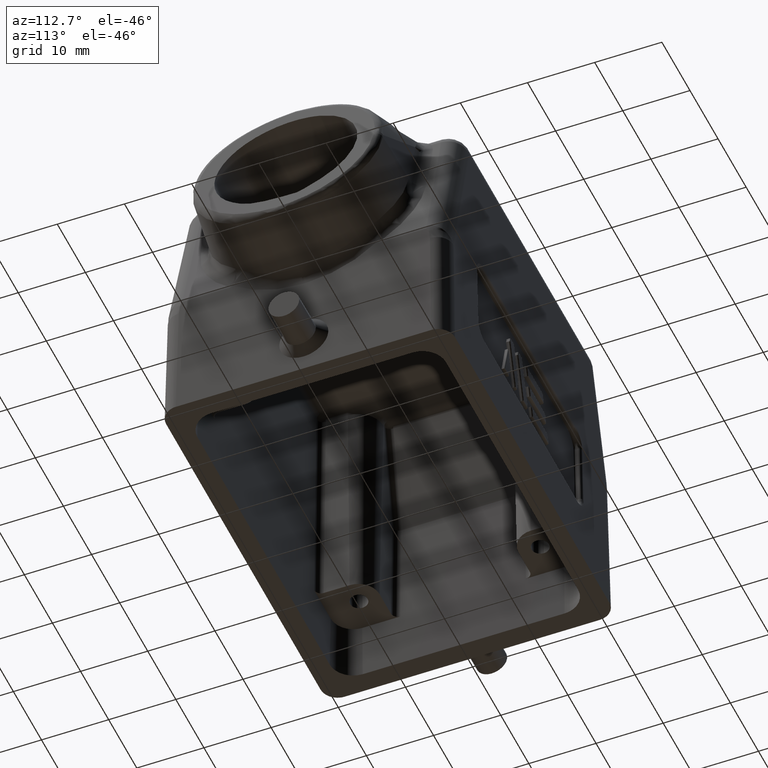
[diagram: clean part render]
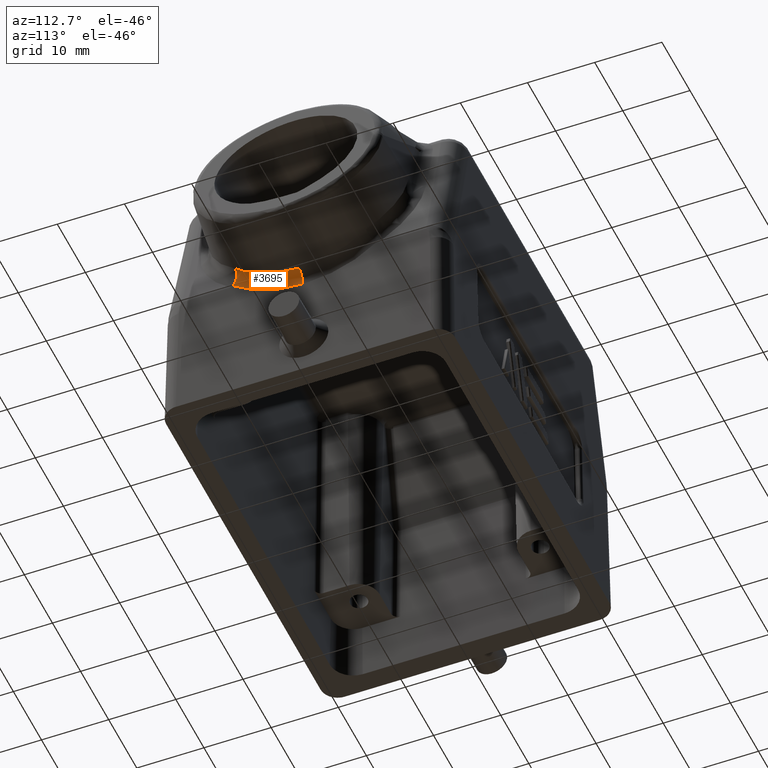
[diagram: same view with one face highlighted and labeled with its STEP entity id]
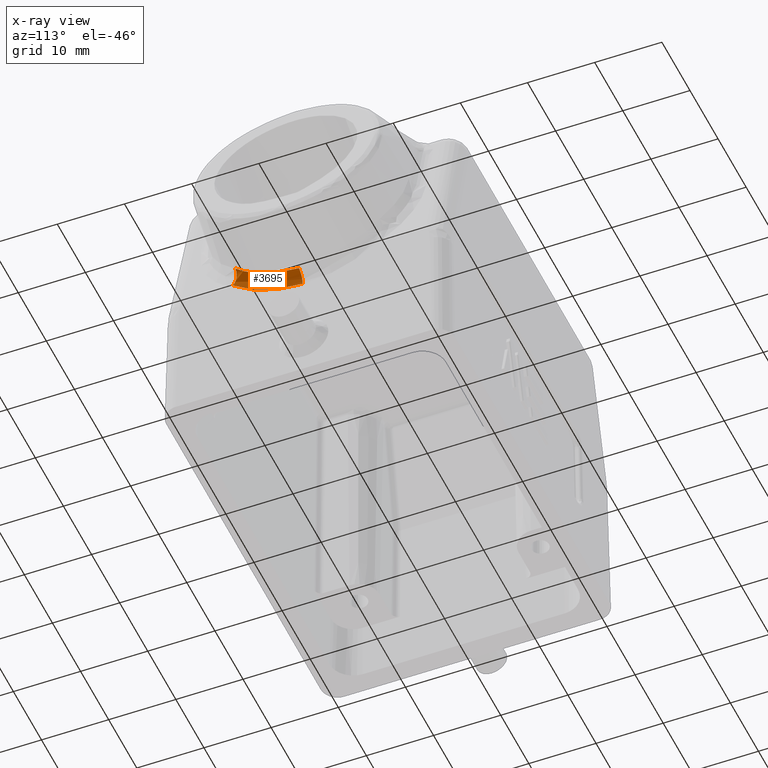
[diagram: x-ray of the same camera — body ghosted, the highlighted face saturated]
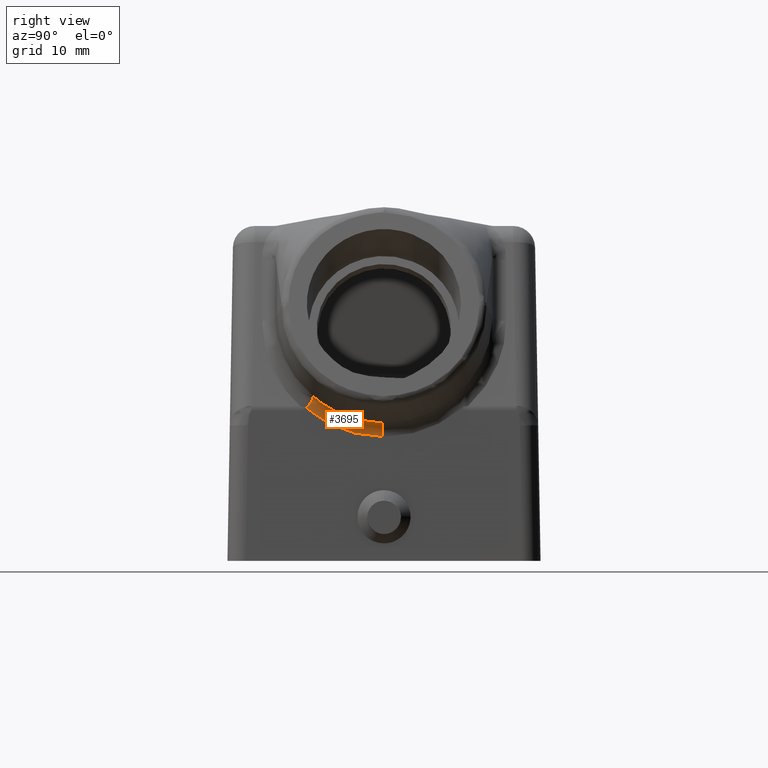
[diagram: same view with one face highlighted and labeled with its STEP entity id]
A machine part, auxiliary view. The second image highlights one B-rep face of the part: STEP entity #3695.
The next image is the same camera in x-ray: the body ghosted, the highlighted face saturated — about 0% of this face is hidden behind the body in this view.
A second angle (right view) of the same face is appended — the face is thin or edge-on in the first view.
In plain terms, the highlighted face is a freeform B-spline surface patch.
Its self-contained STEP definition (entity closure, byte-faithful):
#78 = B_SPLINE_CURVE_WITH_KNOTS ( 'NONE', 3,
 ( #10355, #5268, #9359, #10683, #3522, #3715, #1778, #4663, #7824, #713, #6880, #10890, #9686, #8890, #9885, #10756, #2647, #520, #6686, #3781, #4596, #8695, #6752, #12771, #10825, #12703, #5672, #2519, #1718, #650, #11696, #8758 ),
 .UNSPECIFIED., .F., .F.,
 ( 4, 2, 2, 2, 1, 1, 1, 2, 2, 2, 2, 1, 2, 2, 2, 2, 2, 4 ),
 ( 0.000000000000000000, 0.1250000000000180411, 0.1875000000000278944, 0.2187500000000328348, 0.2343750000000356659, 0.2421875000000341949, 0.2460937500000281442, 0.2480468750000245637, 0.2500000000000209832, 0.3750000000000205391, 0.4375000000000202616, 0.4687500000000183742, 0.4843750000000169864, 0.5000000000000156541, 0.6250000000000139888, 0.6875000000000137668, 0.7500000000000134337, 1.000000000000000000 ),
 .UNSPECIFIED. ) ;
#106 = CARTESIAN_POINT ( 'NONE',  ( 2.410532031252316632, -0.2138507835756210951, 0.7853323967886894907 ) ) ;
#171 = CARTESIAN_POINT ( 'NONE',  ( 2.410525151321834425, -0.2021237060722013978, 0.7808167396402795335 ) ) ;
#185 = ORIENTED_EDGE ( 'NONE', *, *, #8290, .T. ) ;
#231 = CARTESIAN_POINT ( 'NONE',  ( 2.410529119996060565, -0.2090603107907433866, 0.7834692307133687139 ) ) ;
#478 = EDGE_CURVE ( 'NONE', #9720, #4615, #9237, .T. ) ;
#520 = CARTESIAN_POINT ( 'NONE',  ( 2.376005099166590195, -0.3895338843244742222, 0.8688799170413529227 ) ) ;
#650 = CARTESIAN_POINT ( 'NONE',  ( 2.356932806845712935, -0.4093821122469066820, 0.8392228075652745645 ) ) ;
#713 = CARTESIAN_POINT ( 'NONE',  ( 2.389164890124333862, -0.3846900406557042795, 0.8793216709848833412 ) ) ;
#1092 = CARTESIAN_POINT ( 'NONE',  ( 2.410528091709839948, -0.2073428907150584866, 0.7828041075075907740 ) ) ;
#1211 = CARTESIAN_POINT ( 'NONE',  ( 2.356465577731760241, -0.3612823037488399058, 0.7798975530428238212 ) ) ;
#1227 = CARTESIAN_POINT ( 'NONE',  ( 2.410707623619142037, -0.2998722456583452489, 0.8285979095645560344 ) ) ;
#1475 = CARTESIAN_POINT ( 'NONE',  ( 2.354711236637602401, -0.3936332682823150408, 0.8804036870140670157 ) ) ;
#1518 = VERTEX_POINT ( 'NONE', #11343 ) ;
#1712 = EDGE_CURVE ( 'NONE', #1518, #10412, #6983, .T. ) ;
#1718 = CARTESIAN_POINT ( 'NONE',  ( 2.360085719032794405, -0.4036908986678343081, 0.8468787886654920438 ) ) ;
#1778 = CARTESIAN_POINT ( 'NONE',  ( 2.390505308112823357, -0.3843703968229731927, 0.8801975502710797095 ) ) ;
#2227 = CARTESIAN_POINT ( 'NONE',  ( 2.410704137277871695, -0.2986595656671036658, 0.8278543253098012977 ) ) ;
#2265 = CARTESIAN_POINT ( 'NONE',  ( 2.355657416305152463, -0.4202473945183403670, 0.8261970901643700405 ) ) ;
#2397 = AXIS2_PLACEMENT_3D ( 'NONE', #11165, #6278, #6085 ) ;
#2410 = CARTESIAN_POINT ( 'NONE',  ( 2.410414522102803048, -0.1468917376016382059, 0.7456705291821024151 ) ) ;
#2412 = CARTESIAN_POINT ( 'NONE',  ( 2.358181988846760557, -0.1118724155464591724, 0.6815644261218235522 ) ) ;
#2476 = CARTESIAN_POINT ( 'NONE',  ( 2.355465435627925430, -0.4327274467885197096, 0.8371956557966419021 ) ) ;
#2519 = CARTESIAN_POINT ( 'NONE',  ( 2.360828472556849800, -0.4025264964045489058, 0.8484803811200191115 ) ) ;
#2617 = CARTESIAN_POINT ( 'NONE',  ( 2.411013136860780559, -0.3822381215753754002, 0.8902979113073493656 ) ) ;
#2647 = CARTESIAN_POINT ( 'NONE',  ( 2.377407244871250214, -0.3888365076415081778, 0.8701977207799467262 ) ) ;
#2669 = CARTESIAN_POINT ( 'NONE',  ( 2.357355028804606345, -0.009352879380469487219, 0.7289409352066495984 ) ) ;
#3025 = EDGE_CURVE ( 'NONE', #9720, #1518, #11162, .T. ) ;
#3156 = CARTESIAN_POINT ( 'NONE',  ( 2.410516075118277701, -0.1810869043681776203, 0.7733156389411037779 ) ) ;
#3217 = CARTESIAN_POINT ( 'NONE',  ( 2.410679007601093105, -0.2896432267738574540, 0.8224355826670113334 ) ) ;
#3285 = CARTESIAN_POINT ( 'NONE',  ( 2.410528981016485606, -0.2088310535265150147, 0.7833801286220943849 ) ) ;
#3343 = CARTESIAN_POINT ( 'NONE',  ( 2.357117057072633415, -0.2964929054249950680, 0.7425743266008991705 ) ) ;
#3522 = CARTESIAN_POINT ( 'NONE',  ( 2.392872792351638189, -0.3838648034051286850, 0.8816811526152072975 ) ) ;
#3695 = ADVANCED_FACE ( 'NONE', ( #9640 ), #11693, .T. ) ;
#3715 = CARTESIAN_POINT ( 'NONE',  ( 2.391041029694427777, -0.3842501126924178223, 0.8805402501955668093 ) ) ;
#3781 = CARTESIAN_POINT ( 'NONE',  ( 2.373081009347021819, -0.3911794885129662447, 0.8659162627315566407 ) ) ;
#4229 = CARTESIAN_POINT ( 'NONE',  ( 2.410543108017512370, -0.2241526204847609505, 0.7893158352220422946 ) ) ;
#4296 = CARTESIAN_POINT ( 'NONE',  ( 2.410933805323147716, -0.3645157374867210032, 0.8746046700203756741 ) ) ;
#4434 = CARTESIAN_POINT ( 'NONE',  ( 2.410510697611927267, -0.1526635872961241980, 0.7644402883638539148 ) ) ;
#4482 = CARTESIAN_POINT ( 'NONE',  ( 2.356965082367595610, -0.3128339208507394109, 0.7512809516214014049 ) ) ;
#4596 = CARTESIAN_POINT ( 'NONE',  ( 2.372177030022246669, -0.3917492668006619105, 0.8649318018887974802 ) ) ;
#4615 = VERTEX_POINT ( 'NONE', #2265 ) ;
#4663 = CARTESIAN_POINT ( 'NONE',  ( 2.389810892944524756, -0.3845327554232959022, 0.8797468367914026421 ) ) ;
#5170 = CARTESIAN_POINT ( 'NONE',  ( 2.410528868634140842, -0.2086451089178751050, 0.7833079228261442539 ) ) ;
#5268 = CARTESIAN_POINT ( 'NONE',  ( 2.404865911248459387, -0.3822059530632133661, 0.8880609312639158315 ) ) ;
#5306 = CARTESIAN_POINT ( 'NONE',  ( 2.410767999621401980, -0.3207371193742969973, 0.8414461487799553829 ) ) ;
#5491 = CARTESIAN_POINT ( 'NONE',  ( 2.411021387348909695, -0.3840692459899433531, 0.8919602425276574875 ) ) ;
#5493 = CARTESIAN_POINT ( 'NONE',  ( 2.358243536998283041, -0.08870057750295294585, 0.6780383348826654055 ) ) ;
#5672 = CARTESIAN_POINT ( 'NONE',  ( 2.362447566452666958, -0.4003155055975686216, 0.8515962396458753858 ) ) ;
#6085 = DIRECTION ( 'NONE',  ( -0.9998476951563902704, -1.854556347672742564E-16, -0.01745240643733717012 ) ) ;
#6189 = CARTESIAN_POINT ( 'NONE',  ( 2.410627903952732520, -0.009352879380469482015, 0.7457378082209533687 ) ) ;
#6253 = CARTESIAN_POINT ( 'NONE',  ( 2.410527081826209894, -0.2056049896334669336, 0.7821366901607382793 ) ) ;
#6278 = DIRECTION ( 'NONE',  ( -1.957718866711015239E-16, 1.000000000000000000, 6.844404544154184242E-16 ) ) ;
#6308 = CARTESIAN_POINT ( 'NONE',  ( 2.358207710462322915, -0.1026087336812949169, 0.6800908357532204906 ) ) ;
#6373 = CARTESIAN_POINT ( 'NONE',  ( 2.355657416305152463, -0.4202473945183403670, 0.8261970901643700405 ) ) ;
#6441 = CARTESIAN_POINT ( 'NONE',  ( 2.357523170287174619, -0.2458989438936380056, 0.7193081161222160125 ) ) ;
#6641 = CARTESIAN_POINT ( 'NONE',  ( 2.358329888134232721, -0.1647720313990515828, 0.6730912816170865343 ) ) ;
#6686 = CARTESIAN_POINT ( 'NONE',  ( 2.374033768150351165, -0.3906236592080841175, 0.8669040210105047883 ) ) ;
#6707 = CARTESIAN_POINT ( 'NONE',  ( 2.357293744553567105, -0.3169263168400189290, 0.7324519075974330606 ) ) ;
#6752 = CARTESIAN_POINT ( 'NONE',  ( 2.371323642813347288, -0.3923049220050393582, 0.8639827559878086038 ) ) ;
#6776 = CARTESIAN_POINT ( 'NONE',  ( 2.410627903952732520, -0.009352879380469488954, 0.7457378082209528136 ) ) ;
#6811 = CARTESIAN_POINT ( 'NONE',  ( 2.411013136860780559, -0.3822381215753754002, 0.8902979113073493656 ) ) ;
#6880 = CARTESIAN_POINT ( 'NONE',  ( 2.389013560232665423, -0.3847280143954405207, 0.8792212080059335078 ) ) ;
#6983 = B_SPLINE_CURVE_WITH_KNOTS ( 'NONE', 3,
 ( #6189, #8402, #9531, #4434, #3156, #12275, #171, #6253, #1092, #11466, #5170, #3285, #9265, #231, #106, #4229, #12341, #8332, #12465, #7262, #12403, #3217, #7325, #11395, #2227, #10396, #1227, #5306, #9394, #4296, #10976, #2617 ),
 .UNSPECIFIED., .F., .F.,
 ( 4, 1, 1, 1, 1, 1, 1, 1, 1, 1, 2, 2, 2, 2, 2, 1, 1, 1, 2, 2, 2, 4 ),
 ( 0.000000000000000000, 0.2500000000000467959, 0.3750000000000701661, 0.4375000000000818234, 0.4687500000000878186, 0.4843750000000905942, 0.4921875000000917599, 0.4960937500000923150, 0.4980468750000925371, 0.4990234375000927591, 0.4995117187500929257, 0.5000000000000931477, 0.6250000000000672795, 0.6875000000000544009, 0.7187500000000480727, 0.7343750000000450751, 0.7421875000000436318, 0.7460937500000429656, 0.7480468750000426326, 0.7500000000000422995, 0.8750000000000212053, 1.000000000000000000 ),
 .UNSPECIFIED. ) ;
#7262 = CARTESIAN_POINT ( 'NONE',  ( 2.410646226616413923, -0.2768624087436123982, 0.8151461190811992719 ) ) ;
#7325 = CARTESIAN_POINT ( 'NONE',  ( 2.410693379601359876, -0.2948629363230915179, 0.8255481792755927639 ) ) ;
#7406 = ORIENTED_EDGE ( 'NONE', *, *, #3025, .T. ) ;
#7579 = CARTESIAN_POINT ( 'NONE',  ( 2.357750517787208011, -0.2110434259371631316, 0.7062833865684156054 ) ) ;
#7710 = CARTESIAN_POINT ( 'NONE',  ( 2.356378631524811418, -0.2905817624360129692, 0.7848786981299096244 ) ) ;
#7824 = CARTESIAN_POINT ( 'NONE',  ( 2.389490979877859633, -0.3846094432856468348, 0.8795372845485763813 ) ) ;
#7998 = ORIENTED_EDGE ( 'NONE', *, *, #1712, .T. ) ;
#8290 = EDGE_CURVE ( 'NONE', #10412, #4615, #78, .T. ) ;
#8320 = CARTESIAN_POINT ( 'NONE',  ( 2.358095348653151291, -0.1394191003273429208, 0.6865280394893922278 ) ) ;
#8332 = CARTESIAN_POINT ( 'NONE',  ( 2.410599666558823184, -0.2562752936044823127, 0.8042508143416904343 ) ) ;
#8402 = CARTESIAN_POINT ( 'NONE',  ( 2.410574804687673822, -0.04359285150643052442, 0.7457210660869896257 ) ) ;
#8584 = CARTESIAN_POINT ( 'NONE',  ( 2.356085189559372850, -0.3917036413160256969, 0.8016899768436525076 ) ) ;
#8664 = CARTESIAN_POINT ( 'NONE',  ( 2.358329888136236896, -0.009352879380469449055, 0.6730912815023544216 ) ) ;
#8695 = CARTESIAN_POINT ( 'NONE',  ( 2.371585118537963499, -0.3921319582516408775, 0.8642765485981389606 ) ) ;
#8758 = CARTESIAN_POINT ( 'NONE',  ( 2.355657416305152463, -0.4202473945183403670, 0.8261970901643700405 ) ) ;
#8781 = CARTESIAN_POINT ( 'NONE',  ( 2.357358067616362352, -0.1507458727391307318, 0.7287668421713071609 ) ) ;
#8890 = CARTESIAN_POINT ( 'NONE',  ( 2.388927144641941336, -0.3847498442183452383, 0.8791637462167716244 ) ) ;
#9237 = B_SPLINE_CURVE_WITH_KNOTS ( 'NONE', 3,
 ( #9315, #11514, #12590, #5493, #6308, #2412, #12656, #8320, #12391, #10512, #7579, #6441, #10311, #3343, #4482, #1211, #8584, #6373 ),
 .UNSPECIFIED., .F., .F.,
 ( 4, 1, 1, 2, 2, 2, 2, 2, 2, 4 ),
 ( 0.000000000000000000, 0.1250000000000001943, 0.1875000000000003608, 0.2187500000000003331, 0.2500000000000003331, 0.3750000000000002220, 0.5000000000000001110, 0.6250000000000000000, 0.7499999999999997780, 1.000000000000000000 ),
 .UNSPECIFIED. ) ;
#9265 = CARTESIAN_POINT ( 'NONE',  ( 2.410529056070706666, -0.2089550083402829106, 0.7834282879255515253 ) ) ;
#9315 = CARTESIAN_POINT ( 'NONE',  ( 2.358329888136236896, -0.009352879380469449055, 0.6730912815023544216 ) ) ;
#9359 = CARTESIAN_POINT ( 'NONE',  ( 2.399901877104786863, -0.3827340878616887765, 0.8856290043257232236 ) ) ;
#9394 = CARTESIAN_POINT ( 'NONE',  ( 2.410828044048169971, -0.3374993766566450337, 0.8535511041624884720 ) ) ;
#9531 = CARTESIAN_POINT ( 'NONE',  ( 2.410523257639222372, -0.09469393862625773151, 0.7506180757172898899 ) ) ;
#9581 = CARTESIAN_POINT ( 'NONE',  ( 2.410557865302110248, -0.2816460511147000356, 0.7985683715121261184 ) ) ;
#9640 = FACE_OUTER_BOUND ( 'NONE', #9900, .T. ) ;
#9686 = CARTESIAN_POINT ( 'NONE',  ( 2.388910194680831545, -0.3847541754677608616, 0.8791524474772257625 ) ) ;
#9720 = VERTEX_POINT ( 'NONE', #8664 ) ;
#9885 = CARTESIAN_POINT ( 'NONE',  ( 2.385213686506489683, -0.3856959195201744572, 0.8766899241861597636 ) ) ;
#9900 = EDGE_LOOP ( 'NONE', ( #10469, #7406, #7998, #185 ) ) ;
#10311 = CARTESIAN_POINT ( 'NONE',  ( 2.357396478144259344, -0.2629888397912044096, 0.7265663041287129253 ) ) ;
#10355 = CARTESIAN_POINT ( 'NONE',  ( 2.411013136860780559, -0.3822381215753754002, 0.8902979113073493656 ) ) ;
#10396 = CARTESIAN_POINT ( 'NONE',  ( 2.410706333874776064, -0.2994249485725061222, 0.8283231092494501846 ) ) ;
#10412 = VERTEX_POINT ( 'NONE', #6811 ) ;
#10469 = ORIENTED_EDGE ( 'NONE', *, *, #478, .F. ) ;
#10512 = CARTESIAN_POINT ( 'NONE',  ( 2.357850989263390318, -0.1932951355106558300, 0.7005273795529236569 ) ) ;
#10683 = CARTESIAN_POINT ( 'NONE',  ( 2.394393933097997973, -0.3835742308923526522, 0.8825933862539921959 ) ) ;
#10756 = CARTESIAN_POINT ( 'NONE',  ( 2.381877833176040404, -0.3868597830408092575, 0.8741189730777461087 ) ) ;
#10825 = CARTESIAN_POINT ( 'NONE',  ( 2.366244382405011670, -0.3961410741971171379, 0.8577452558891147660 ) ) ;
#10890 = CARTESIAN_POINT ( 'NONE',  ( 2.388951207631258011, -0.3847437796375796082, 0.8791797392716235171 ) ) ;
#10976 = CARTESIAN_POINT ( 'NONE',  ( 2.410979531943349574, -0.3747795865766312406, 0.8835573988922641453 ) ) ;
#11162 = CIRCLE ( 'NONE', #2397, 0.07480314960629239063 ) ;
#11165 = CARTESIAN_POINT ( 'NONE',  ( 2.433121644860527066, -0.009352879380469435178, 0.6743967764720762981 ) ) ;
#11343 = CARTESIAN_POINT ( 'NONE',  ( 2.410627903952732520, -0.009352879380469482015, 0.7457378082209533687 ) ) ;
#11395 = CARTESIAN_POINT ( 'NONE',  ( 2.410700864323800374, -0.2975144097001964916, 0.8271548223804265909 ) ) ;
#11466 = CARTESIAN_POINT ( 'NONE',  ( 2.410528607801687873, -0.2082111515197374585, 0.7831396747802802372 ) ) ;
#11514 = CARTESIAN_POINT ( 'NONE',  ( 2.358329888136240005, -0.02811606621524858837, 0.6730912815023544216 ) ) ;
#11693 =( BOUNDED_SURFACE ( )  B_SPLINE_SURFACE ( 3, 2, ( 
 ( #2476, #1475, #5491 ),
 ( #6707, #7710, #9581 ),
 ( #6641, #8781, #2410 ),
 ( #12793, #2669, #6776 ) ),
 .UNSPECIFIED., .F., .F., .F. ) 
 B_SPLINE_SURFACE_WITH_KNOTS ( ( 4, 4 ),
 ( 3, 3 ),
 ( 0.000000000000000000, 1.000000000000000000 ),
 ( 0.000000000000000000, 1.000000000000000000 ),
 .UNSPECIFIED. ) 
 GEOMETRIC_REPRESENTATION_ITEM ( )  RATIONAL_B_SPLINE_SURFACE ( (
 ( 1.000000000000000000, 0.7888727953786169866, 1.000000000000000000),
 ( 1.000000000000000000, 0.7977235812428770112, 1.000000000000000000),
 ( 1.000000000000000000, 0.8021705951141809843, 1.000000000000000000),
 ( 1.000000000000000000, 0.8012538126910619951, 1.000000000000000000) ) ) 
 REPRESENTATION_ITEM ( '' )  SURFACE ( )  );
#11696 = CARTESIAN_POINT ( 'NONE',  ( 2.355544898606833915, -0.4146749155703869927, 0.8326432247874089310 ) ) ;
#12275 = CARTESIAN_POINT ( 'NONE',  ( 2.410521647863844041, -0.1951395052810780961, 0.7782364983279095316 ) ) ;
#12341 = CARTESIAN_POINT ( 'NONE',  ( 2.410582581131495150, -0.2472896213096956453, 0.7999258010366115945 ) ) ;
#12391 = CARTESIAN_POINT ( 'NONE',  ( 2.358023211698932364, -0.1575125618825316265, 0.6906607628287441125 ) ) ;
#12403 = CARTESIAN_POINT ( 'NONE',  ( 2.410667674776244329, -0.2853152690148374471, 0.8199353806606474171 ) ) ;
#12465 = CARTESIAN_POINT ( 'NONE',  ( 2.410633549444979984, -0.2714981481181011347, 0.8122346054251499137 ) ) ;
#12590 = CARTESIAN_POINT ( 'NONE',  ( 2.358307841037187380, -0.05615977942265277384, 0.6743543589611572520 ) ) ;
#12656 = CARTESIAN_POINT ( 'NONE',  ( 2.358168052016484495, -0.1165495549569491029, 0.6823628665936234405 ) ) ;
#12703 = CARTESIAN_POINT ( 'NONE',  ( 2.363338431754374191, -0.3992427088154089088, 0.8531457625920828569 ) ) ;
#12771 = CARTESIAN_POINT ( 'NONE',  ( 2.368494286262700754, -0.3942296364251663965, 0.8607452742496025655 ) ) ;
#12793 = CARTESIAN_POINT ( 'NONE',  ( 2.358329888136236452, -0.009352879380469449055, 0.6730912815023544216 ) ) ;